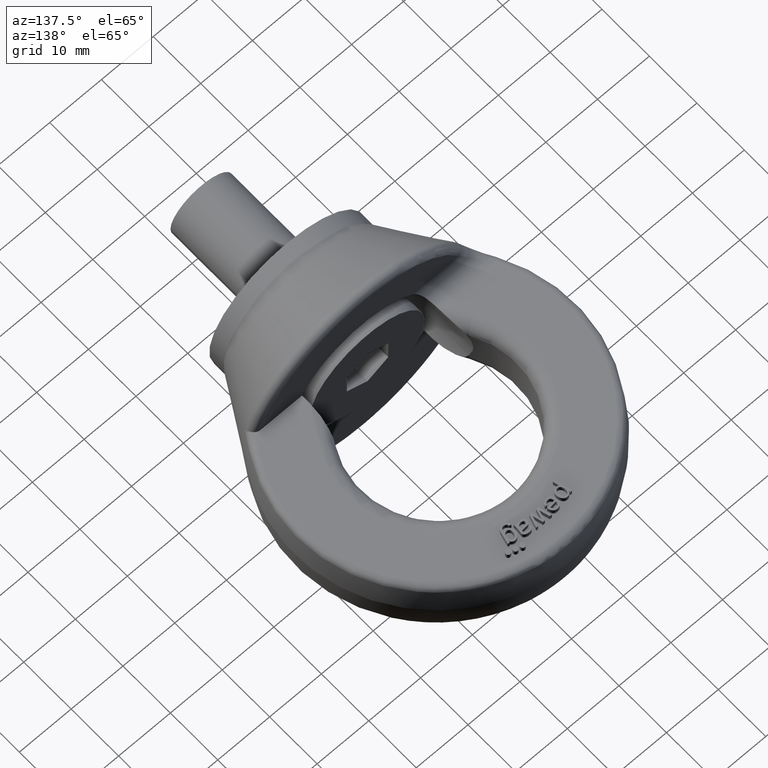
[diagram: clean part render]
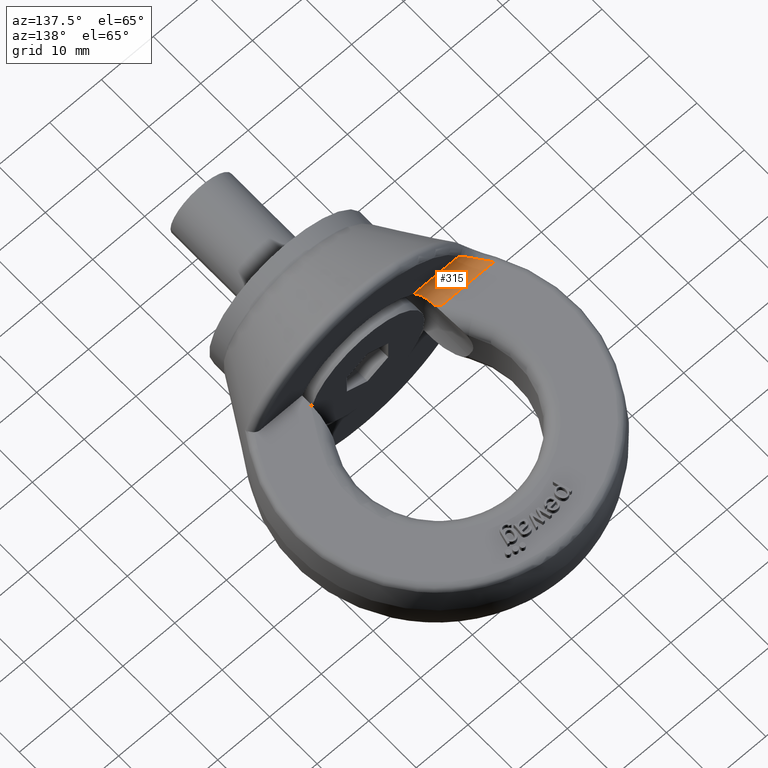
[diagram: same view with one face highlighted and labeled with its STEP entity id]
A machine part, auxiliary view. The second image highlights one B-rep face of the part: STEP entity #315.
In plain terms, the highlighted cylindrical surface (edge-blend (fillet) strip) has radius 3 mm, axis along (-1, -0, 0).
Its self-contained STEP definition (entity closure, byte-faithful):
#117=CYLINDRICAL_SURFACE('',#3242,3.);
#142=FACE_OUTER_BOUND('',#717,.T.);
#293=ELLIPSE('',#3241,4.40740772671821,3.);
#315=ADVANCED_FACE('',(#142),#117,.F.);
#717=EDGE_LOOP('',(#1491,#1492,#1493,#1494,#1495,#1496));
#920=LINE('',#4143,#1114);
#931=LINE('',#4262,#1125);
#1114=VECTOR('',#3398,1.);
#1125=VECTOR('',#3415,1.);
#1491=ORIENTED_EDGE('',*,*,#2609,.F.);
#1492=ORIENTED_EDGE('',*,*,#2629,.T.);
#1493=ORIENTED_EDGE('',*,*,#2549,.F.);
#1494=ORIENTED_EDGE('',*,*,#2630,.T.);
#1495=ORIENTED_EDGE('',*,*,#2631,.T.);
#1496=ORIENTED_EDGE('',*,*,#2569,.F.);
#2256=VERTEX_POINT('',#4142);
#2257=VERTEX_POINT('',#4144);
#2276=VERTEX_POINT('',#4263);
#2277=VERTEX_POINT('',#4264);
#2308=VERTEX_POINT('',#4415);
#2323=VERTEX_POINT('',#4470);
#2549=EDGE_CURVE('',#2256,#2257,#920,.T.);
#2569=EDGE_CURVE('',#2276,#2277,#931,.T.);
#2609=EDGE_CURVE('',#2308,#2276,#2985,.T.);
#2629=EDGE_CURVE('',#2308,#2257,#293,.T.);
#2630=EDGE_CURVE('',#2256,#2323,#2986,.T.);
#2631=EDGE_CURVE('',#2323,#2277,#2987,.T.);
#2985=B_SPLINE_CURVE_WITH_KNOTS('',3,(#4416,#4417,#4418,#4419,#4420,#4421),
 .UNSPECIFIED.,.F.,.F.,(4,2,4),(0.,0.5,1.),.UNSPECIFIED.);
#2986=B_SPLINE_CURVE_WITH_KNOTS('',3,(#4466,#4467,#4468,#4469),
 .UNSPECIFIED.,.F.,.F.,(4,4),(0.,1.),.UNSPECIFIED.);
#2987=B_SPLINE_CURVE_WITH_KNOTS('',3,(#4471,#4472,#4473,#4474),
 .UNSPECIFIED.,.F.,.F.,(4,4),(0.,1.),.UNSPECIFIED.);
#3241=AXIS2_PLACEMENT_3D('',#4465,#3516,#3517);
#3242=AXIS2_PLACEMENT_3D('',#4475,#3518,#3519);
#3398=DIRECTION('',(1.,4.38613491528481E-16,-5.02463381551158E-32));
#3415=DIRECTION('',(-1.,-4.38613491528481E-16,5.02463381551158E-32));
#3516=DIRECTION('',(0.680672219593766,0.732588103557037,2.73610292148013E-32));
#3517=DIRECTION('',(-0.732588103557037,0.680672219593766,0.));
#3518=DIRECTION('',(-1.,-4.38613491528481E-16,5.02463381551158E-32));
#3519=DIRECTION('',(5.78241158658936E-16,-1.,0.));
#4142=CARTESIAN_POINT('',(-22.6362541070734,19.,6.00000000000001));
#4143=CARTESIAN_POINT('',(55.,19.,6.00000000000001));
#4144=CARTESIAN_POINT('',(-12.5001206894794,19.,6.00000000000001));
#4262=CARTESIAN_POINT('',(-7.91003245217853,16.,9.00000000000001));
#4263=CARTESIAN_POINT('',(-9.65841805139461,16.,9.00000000000001));
#4264=CARTESIAN_POINT('',(-18.5937741275881,16.,9.00000000000001));
#4415=CARTESIAN_POINT('',(-11.7128239965568,18.268496191996,6.09054950568401));
#4416=CARTESIAN_POINT('',(-11.7128239965568,18.268496191996,6.09054950568401));
#4417=CARTESIAN_POINT('',(-11.6173034764547,17.537868381932,6.27424640182972));
#4418=CARTESIAN_POINT('',(-11.3693720143032,16.9153961649325,6.74195030575939));
#4419=CARTESIAN_POINT('',(-10.6439656850408,16.1552896275914,7.83725133070416));
#4420=CARTESIAN_POINT('',(-10.1780426529183,16.,8.44236092985504));
#4421=CARTESIAN_POINT('',(-9.65841805139461,16.,9.00000000000001));
#4465=CARTESIAN_POINT('',(-12.5001206894794,19.,9.00000000000001));
#4466=CARTESIAN_POINT('',(-22.6362541070734,19.,6.00000000000001));
#4467=CARTESIAN_POINT('',(-22.4447901337077,18.7523413055167,6.00000000000001));
#4468=CARTESIAN_POINT('',(-22.2403115176209,18.5131677808478,6.03070109604195));
#4469=CARTESIAN_POINT('',(-22.0299506576707,18.2879695935804,6.08572261094899));
#4470=CARTESIAN_POINT('',(-22.0299506576707,18.2879695935804,6.08572261094899));
#4471=CARTESIAN_POINT('',(-22.0299506576707,18.2879695935804,6.08572261094899));
#4472=CARTESIAN_POINT('',(-20.8400083831766,17.0140974329878,6.39696124445763));
#4473=CARTESIAN_POINT('',(-19.589345848217,16.,7.53083843641351));
#4474=CARTESIAN_POINT('',(-18.5937741275881,16.,8.99999999999997));
#4475=CARTESIAN_POINT('',(-7.91003245217853,19.,9.00000000000001));